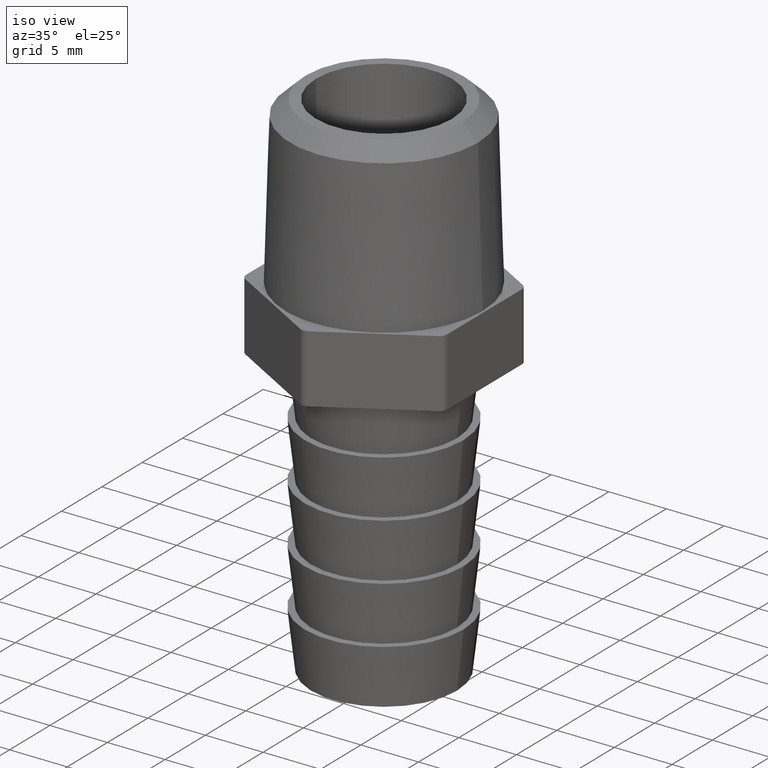
[diagram: clean part render]
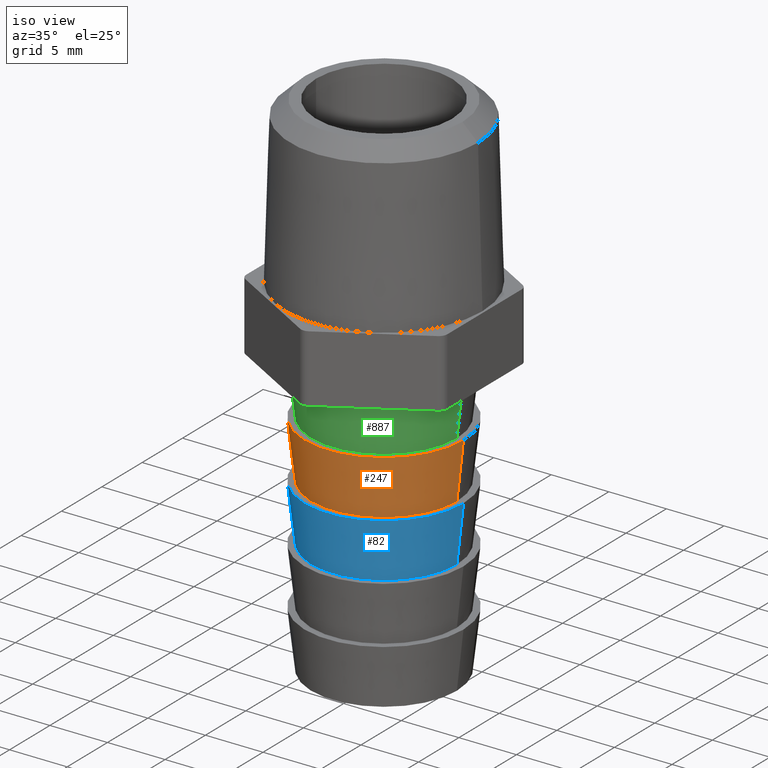
[diagram: same view with three faces highlighted in distinct colors, each labeled with its STEP entity id]
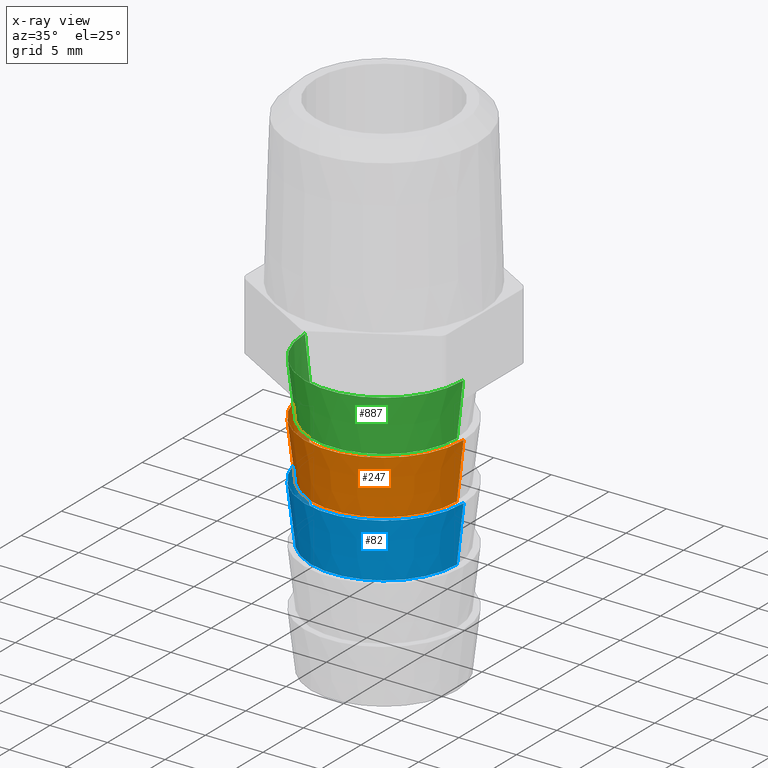
[diagram: x-ray of the same camera — body ghosted, the three highlighted faces saturated]
A machine part, iso view with three faces highlighted in distinct colors.
The next image is the same camera in x-ray (body ghosted, the three faces saturated) — at least one of them is partly hidden behind the body in this view.
Their STEP definitions:

[orange] entity #247 — the highlighted conical surface has half-angle 6.582 deg.
#21 = CARTESIAN_POINT ( 'NONE',  ( 0.2715000000000000200, 0.0000000000000000000, -0.2999999999999999300 ) ) ;
#64 = CARTESIAN_POINT ( 'NONE',  ( -0.2715000000000000200, 3.324916059685064000E-017, -0.2999999999999999300 ) ) ;
#85 = ORIENTED_EDGE ( 'NONE', *, *, #521, .F. ) ;
#110 = CARTESIAN_POINT ( 'NONE',  ( 0.0000000000000000000, 0.0000000000000000000, -0.2999999999999999300 ) ) ;
#152 = VERTEX_POINT ( 'NONE', #1089 ) ;
#160 = CARTESIAN_POINT ( 'NONE',  ( 0.2715000000000000200, 0.0000000000000000000, -0.2999999999999999300 ) ) ;
#161 = VECTOR ( 'NONE', #529, 39.37007874015747400 ) ;
#170 = CARTESIAN_POINT ( 'NONE',  ( 0.0000000000000000000, 0.0000000000000000000, -0.4949999999999998800 ) ) ;
#176 = CIRCLE ( 'NONE', #306, 0.2715000000000000200 ) ;
#196 = DIRECTION ( 'NONE',  ( 1.000000000000000000, 0.0000000000000000000, 0.0000000000000000000 ) ) ;
#240 = VERTEX_POINT ( 'NONE', #21 ) ;
#247 = ADVANCED_FACE ( 'NONE', ( #1072 ), #539, .T. ) ;
#263 = DIRECTION ( 'NONE',  ( 1.000000000000000000, 0.0000000000000000000, 0.0000000000000000000 ) ) ;
#306 = AXIS2_PLACEMENT_3D ( 'NONE', #490, #1123, #588 ) ;
#340 = ORIENTED_EDGE ( 'NONE', *, *, #580, .T. ) ;
#353 = EDGE_CURVE ( 'NONE', #1106, #240, #176, .T. ) ;
#456 = CARTESIAN_POINT ( 'NONE',  ( -0.2490000000000000000, 3.187143294780986800E-017, -0.4949999999999998800 ) ) ;
#459 = ORIENTED_EDGE ( 'NONE', *, *, #353, .F. ) ;
#490 = CARTESIAN_POINT ( 'NONE',  ( 0.0000000000000000000, 0.0000000000000000000, -0.2999999999999999300 ) ) ;
#521 = EDGE_CURVE ( 'NONE', #671, #1106, #946, .T. ) ;
#529 = DIRECTION ( 'NONE',  ( 0.1146241079851307000, 0.0000000000000000000, 0.9934089358711312200 ) ) ;
#539 = CONICAL_SURFACE ( 'NONE', #851, 0.2715000000000000200, 0.1148766054168993100 ) ;
#580 = EDGE_CURVE ( 'NONE', #152, #240, #1128, .T. ) ;
#588 = DIRECTION ( 'NONE',  ( 1.000000000000000000, 0.0000000000000000000, 0.0000000000000000000 ) ) ;
#600 = EDGE_CURVE ( 'NONE', #671, #152, #656, .T. ) ;
#656 = CIRCLE ( 'NONE', #1078, 0.2490000000000000000 ) ;
#671 = VERTEX_POINT ( 'NONE', #456 ) ;
#710 = VECTOR ( 'NONE', #881, 39.37007874015747400 ) ;
#766 = EDGE_LOOP ( 'NONE', ( #85, #849, #340, #459 ) ) ;
#808 = DIRECTION ( 'NONE',  ( -0.0000000000000000000, -0.0000000000000000000, 1.000000000000000000 ) ) ;
#832 = DIRECTION ( 'NONE',  ( -0.0000000000000000000, -0.0000000000000000000, 1.000000000000000000 ) ) ;
#849 = ORIENTED_EDGE ( 'NONE', *, *, #600, .T. ) ;
#851 = AXIS2_PLACEMENT_3D ( 'NONE', #110, #832, #196 ) ;
#881 = DIRECTION ( 'NONE',  ( -0.1146241079851307000, 1.403740469491109100E-017, 0.9934089358711312200 ) ) ;
#885 = CARTESIAN_POINT ( 'NONE',  ( -0.2715000000000000200, 3.324916059685064000E-017, -0.2999999999999999300 ) ) ;
#946 = LINE ( 'NONE', #64, #710 ) ;
#1072 = FACE_OUTER_BOUND ( 'NONE', #766, .T. ) ;
#1078 = AXIS2_PLACEMENT_3D ( 'NONE', #170, #808, #263 ) ;
#1089 = CARTESIAN_POINT ( 'NONE',  ( 0.2490000000000000000, 0.0000000000000000000, -0.4949999999999998800 ) ) ;
#1106 = VERTEX_POINT ( 'NONE', #885 ) ;
#1123 = DIRECTION ( 'NONE',  ( -0.0000000000000000000, -0.0000000000000000000, 1.000000000000000000 ) ) ;
#1128 = LINE ( 'NONE', #160, #161 ) ;

[blue] entity #82 — the highlighted conical surface has half-angle 6.582 deg.
#7 = CIRCLE ( 'NONE', #882, 0.2490000000000000000 ) ;
#82 = ADVANCED_FACE ( 'NONE', ( #519 ), #711, .T. ) ;
#107 = EDGE_LOOP ( 'NONE', ( #369, #508, #702, #909 ) ) ;
#112 = CARTESIAN_POINT ( 'NONE',  ( 0.2715000000000000200, 0.0000000000000000000, -0.4950000000000000000 ) ) ;
#142 = CARTESIAN_POINT ( 'NONE',  ( 0.0000000000000000000, 0.0000000000000000000, -0.4949999999999998800 ) ) ;
#191 = EDGE_CURVE ( 'NONE', #476, #333, #893, .T. ) ;
#194 = CARTESIAN_POINT ( 'NONE',  ( -0.2490000000000000000, 3.187143294780986800E-017, -0.6900000000000000600 ) ) ;
#232 = DIRECTION ( 'NONE',  ( 1.000000000000000000, 0.0000000000000000000, 0.0000000000000000000 ) ) ;
#244 = DIRECTION ( 'NONE',  ( -0.1146241079851307000, 1.403740469491109100E-017, 0.9934089358711312200 ) ) ;
#270 = DIRECTION ( 'NONE',  ( -0.0000000000000000000, -0.0000000000000000000, 1.000000000000000000 ) ) ;
#333 = VERTEX_POINT ( 'NONE', #669 ) ;
#369 = ORIENTED_EDGE ( 'NONE', *, *, #1062, .F. ) ;
#383 = VECTOR ( 'NONE', #748, 39.37007874015747400 ) ;
#438 = DIRECTION ( 'NONE',  ( -0.0000000000000000000, -0.0000000000000000000, 1.000000000000000000 ) ) ;
#451 = DIRECTION ( 'NONE',  ( 1.000000000000000000, 0.0000000000000000000, 0.0000000000000000000 ) ) ;
#476 = VERTEX_POINT ( 'NONE', #1042 ) ;
#495 = AXIS2_PLACEMENT_3D ( 'NONE', #142, #775, #232 ) ;
#508 = ORIENTED_EDGE ( 'NONE', *, *, #1131, .T. ) ;
#509 = VECTOR ( 'NONE', #244, 39.37007874015747400 ) ;
#519 = FACE_OUTER_BOUND ( 'NONE', #107, .T. ) ;
#669 = CARTESIAN_POINT ( 'NONE',  ( 0.2715000000000000200, 0.0000000000000000000, -0.4949999999999998800 ) ) ;
#702 = ORIENTED_EDGE ( 'NONE', *, *, #191, .T. ) ;
#708 = CARTESIAN_POINT ( 'NONE',  ( -0.2715000000000000200, 3.324916059685064000E-017, -0.4949999999999998800 ) ) ;
#711 = CONICAL_SURFACE ( 'NONE', #823, 0.2715000000000000200, 0.1148766054168993100 ) ;
#748 = DIRECTION ( 'NONE',  ( 0.1146241079851307000, 0.0000000000000000000, 0.9934089358711312200 ) ) ;
#762 = VERTEX_POINT ( 'NONE', #194 ) ;
#775 = DIRECTION ( 'NONE',  ( -0.0000000000000000000, -0.0000000000000000000, 1.000000000000000000 ) ) ;
#786 = CARTESIAN_POINT ( 'NONE',  ( -0.2715000000000000200, 3.324916059685064000E-017, -0.4950000000000000000 ) ) ;
#823 = AXIS2_PLACEMENT_3D ( 'NONE', #992, #270, #451 ) ;
#882 = AXIS2_PLACEMENT_3D ( 'NONE', #976, #438, #1066 ) ;
#893 = LINE ( 'NONE', #112, #383 ) ;
#909 = ORIENTED_EDGE ( 'NONE', *, *, #950, .F. ) ;
#950 = EDGE_CURVE ( 'NONE', #1109, #333, #1045, .T. ) ;
#964 = LINE ( 'NONE', #786, #509 ) ;
#976 = CARTESIAN_POINT ( 'NONE',  ( 0.0000000000000000000, 0.0000000000000000000, -0.6900000000000000600 ) ) ;
#992 = CARTESIAN_POINT ( 'NONE',  ( 0.0000000000000000000, 0.0000000000000000000, -0.4950000000000000000 ) ) ;
#1042 = CARTESIAN_POINT ( 'NONE',  ( 0.2490000000000000000, 0.0000000000000000000, -0.6900000000000000600 ) ) ;
#1045 = CIRCLE ( 'NONE', #495, 0.2715000000000000200 ) ;
#1062 = EDGE_CURVE ( 'NONE', #762, #1109, #964, .T. ) ;
#1066 = DIRECTION ( 'NONE',  ( 1.000000000000000000, 0.0000000000000000000, 0.0000000000000000000 ) ) ;
#1109 = VERTEX_POINT ( 'NONE', #708 ) ;
#1131 = EDGE_CURVE ( 'NONE', #762, #476, #7, .T. ) ;

[green] entity #887 — the highlighted conical surface has half-angle 6.582 deg.
#45 = DIRECTION ( 'NONE',  ( -0.0000000000000000000, -0.0000000000000000000, 1.000000000000000000 ) ) ;
#90 = CIRCLE ( 'NONE', #249, 0.2702307692307692700 ) ;
#91 = EDGE_LOOP ( 'NONE', ( #422, #777, #686, #1032 ) ) ;
#148 = VERTEX_POINT ( 'NONE', #822 ) ;
#190 = CARTESIAN_POINT ( 'NONE',  ( -0.2702307692307692700, 3.309372465695886200E-017, -0.1160000000000000100 ) ) ;
#221 = DIRECTION ( 'NONE',  ( 1.000000000000000000, 0.0000000000000000000, 0.0000000000000000000 ) ) ;
#241 = CIRCLE ( 'NONE', #663, 0.2490000000000000000 ) ;
#245 = EDGE_CURVE ( 'NONE', #148, #742, #807, .T. ) ;
#249 = AXIS2_PLACEMENT_3D ( 'NONE', #869, #330, #961 ) ;
#330 = DIRECTION ( 'NONE',  ( -0.0000000000000000000, -0.0000000000000000000, 1.000000000000000000 ) ) ;
#343 = DIRECTION ( 'NONE',  ( -0.1146241079851307000, 1.403740469491109100E-017, 0.9934089358711312200 ) ) ;
#374 = VERTEX_POINT ( 'NONE', #943 ) ;
#422 = ORIENTED_EDGE ( 'NONE', *, *, #532, .F. ) ;
#462 = DIRECTION ( 'NONE',  ( -0.0000000000000000000, -0.0000000000000000000, 1.000000000000000000 ) ) ;
#467 = LINE ( 'NONE', #886, #682 ) ;
#468 = CARTESIAN_POINT ( 'NONE',  ( 0.2702307692307692700, 0.0000000000000000000, -0.1160000000000000100 ) ) ;
#473 = CONICAL_SURFACE ( 'NONE', #926, 0.2715000000000000200, 0.1148766054168993100 ) ;
#526 = FACE_OUTER_BOUND ( 'NONE', #91, .T. ) ;
#532 = EDGE_CURVE ( 'NONE', #374, #746, #467, .T. ) ;
#571 = VECTOR ( 'NONE', #745, 39.37007874015747400 ) ;
#663 = AXIS2_PLACEMENT_3D ( 'NONE', #999, #462, #1088 ) ;
#682 = VECTOR ( 'NONE', #343, 39.37007874015747400 ) ;
#685 = EDGE_CURVE ( 'NONE', #374, #148, #241, .T. ) ;
#686 = ORIENTED_EDGE ( 'NONE', *, *, #245, .T. ) ;
#742 = VERTEX_POINT ( 'NONE', #468 ) ;
#745 = DIRECTION ( 'NONE',  ( 0.1146241079851307000, 0.0000000000000000000, 0.9934089358711312200 ) ) ;
#746 = VERTEX_POINT ( 'NONE', #190 ) ;
#777 = ORIENTED_EDGE ( 'NONE', *, *, #685, .T. ) ;
#807 = LINE ( 'NONE', #1098, #571 ) ;
#822 = CARTESIAN_POINT ( 'NONE',  ( 0.2490000000000000000, 0.0000000000000000000, -0.2999999999999999300 ) ) ;
#869 = CARTESIAN_POINT ( 'NONE',  ( 0.0000000000000000000, 0.0000000000000000000, -0.1160000000000000100 ) ) ;
#886 = CARTESIAN_POINT ( 'NONE',  ( -0.2715000000000000200, 3.324916059685064000E-017, -0.1049999999999999700 ) ) ;
#887 = ADVANCED_FACE ( 'NONE', ( #526 ), #473, .T. ) ;
#926 = AXIS2_PLACEMENT_3D ( 'NONE', #948, #45, #221 ) ;
#943 = CARTESIAN_POINT ( 'NONE',  ( -0.2490000000000000000, 3.179371497786398200E-017, -0.2999999999999999300 ) ) ;
#948 = CARTESIAN_POINT ( 'NONE',  ( 0.0000000000000000000, 0.0000000000000000000, -0.1049999999999999700 ) ) ;
#961 = DIRECTION ( 'NONE',  ( -1.000000000000000000, 0.0000000000000000000, 0.0000000000000000000 ) ) ;
#984 = EDGE_CURVE ( 'NONE', #746, #742, #90, .T. ) ;
#999 = CARTESIAN_POINT ( 'NONE',  ( 0.0000000000000000000, 0.0000000000000000000, -0.2999999999999999300 ) ) ;
#1032 = ORIENTED_EDGE ( 'NONE', *, *, #984, .F. ) ;
#1088 = DIRECTION ( 'NONE',  ( 1.000000000000000000, 0.0000000000000000000, 0.0000000000000000000 ) ) ;
#1098 = CARTESIAN_POINT ( 'NONE',  ( 0.2715000000000000200, 0.0000000000000000000, -0.1049999999999999700 ) ) ;